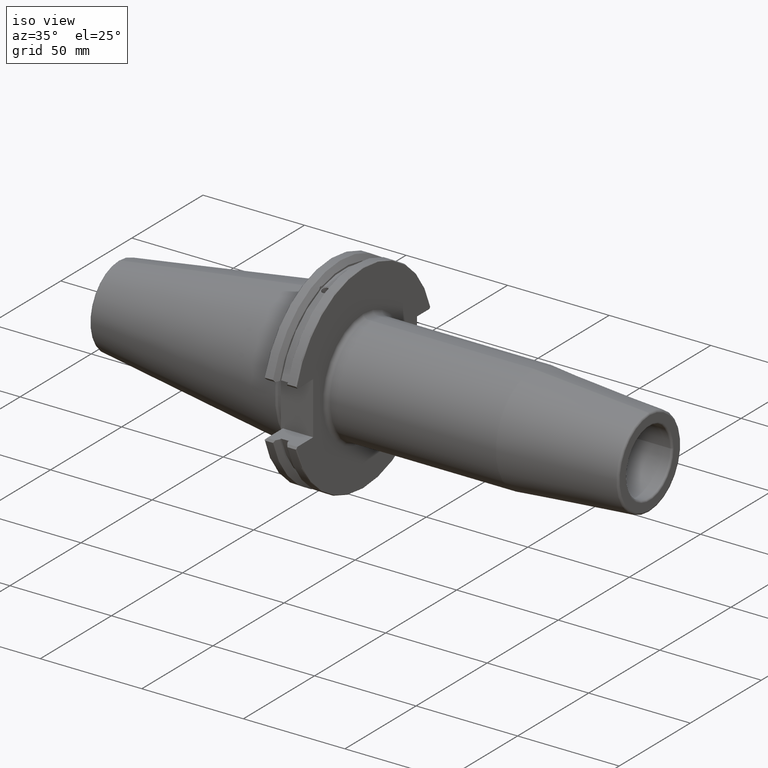
[diagram: clean part render]
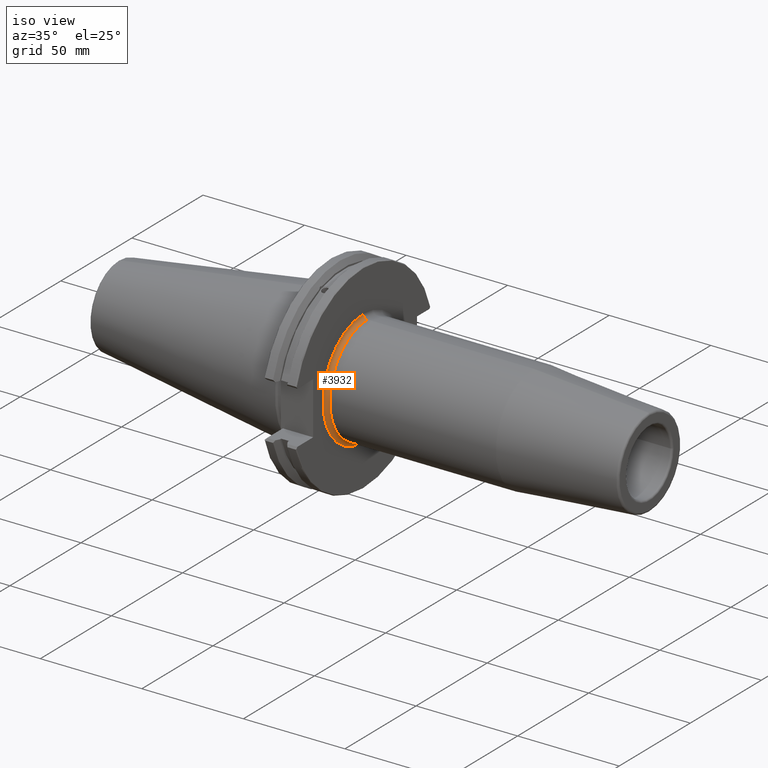
[diagram: same view with one face highlighted and labeled with its STEP entity id]
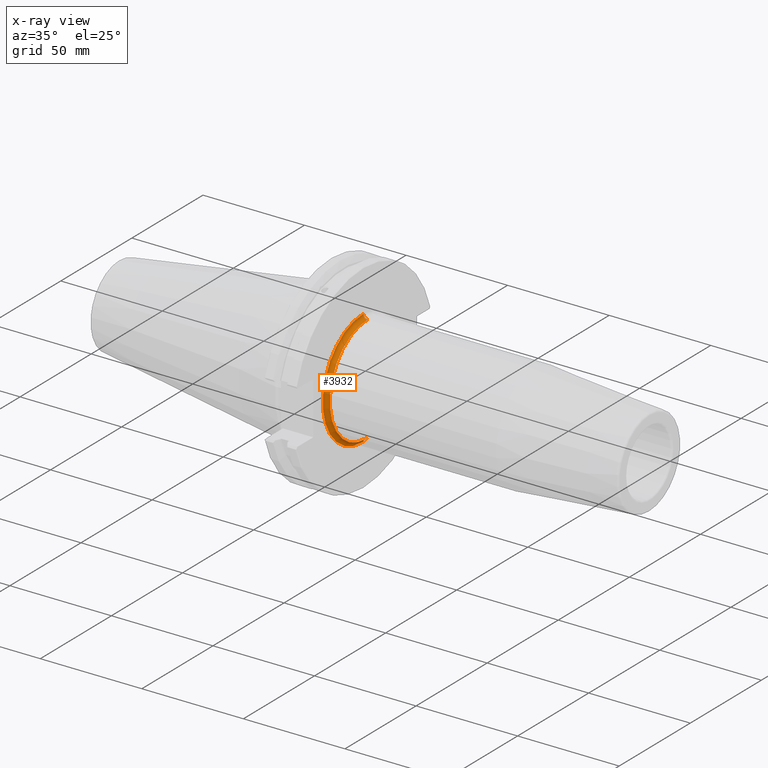
[diagram: x-ray of the same camera — body ghosted, the highlighted face saturated]
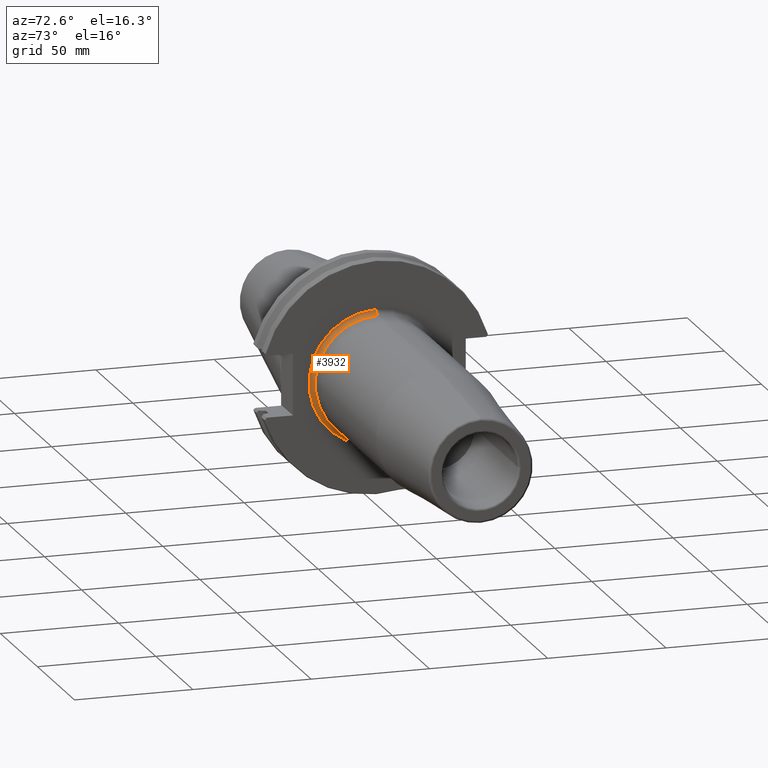
[diagram: same view with one face highlighted and labeled with its STEP entity id]
A machine part, iso view. The second image highlights one B-rep face of the part: STEP entity #3932.
The next image is the same camera in x-ray: the body ghosted, the highlighted face saturated — about 0% of this face is hidden behind the body in this view.
A second angle (auxiliary view) of the same face is appended — the face is thin or edge-on in the first view.
In plain terms, the highlighted toroidal blend (fillet) surface has major radius 28.5 mm and minor (blend) radius 2 mm.
Its self-contained STEP definition (entity closure, byte-faithful):
#407=CARTESIAN_POINT('',(1.905E1,0.E0,-1.599114874461E-14));
#408=DIRECTION('',(1.E0,0.E0,0.E0));
#409=DIRECTION('',(0.E0,0.E0,1.E0));
#410=AXIS2_PLACEMENT_3D('',#407,#408,#409);
#1657=CARTESIAN_POINT('',(2.105E1,0.E0,-1.576424347687E-14));
#1658=DIRECTION('',(1.E0,0.E0,0.E0));
#1659=DIRECTION('',(0.E0,0.E0,1.E0));
#1660=AXIS2_PLACEMENT_3D('',#1657,#1658,#1659);
#1667=CARTESIAN_POINT('',(2.105E1,2.983072899809E-9,2.85E1));
#1668=DIRECTION('',(0.E0,-1.E0,1.046692281459E-10));
#1669=DIRECTION('',(-1.E0,0.E0,-7.893419251559E-11));
#1670=AXIS2_PLACEMENT_3D('',#1667,#1668,#1669);
#1672=CARTESIAN_POINT('',(2.105E1,-2.983077895813E-9,-2.85E1));
#1673=DIRECTION('',(0.E0,1.E0,-1.046694016182E-10));
#1674=DIRECTION('',(-1.E0,0.E0,7.893063980191E-11));
#1675=AXIS2_PLACEMENT_3D('',#1672,#1673,#1674);
#2044=CARTESIAN_POINT('',(1.905E1,0.E0,2.85E1));
#2045=CARTESIAN_POINT('',(1.905E1,0.E0,-2.85E1));
#2046=VERTEX_POINT('',#2044);
#2047=VERTEX_POINT('',#2045);
#2048=CARTESIAN_POINT('',(2.105E1,0.E0,2.65E1));
#2049=CARTESIAN_POINT('',(2.105E1,0.E0,-2.65E1));
#2050=VERTEX_POINT('',#2048);
#2051=VERTEX_POINT('',#2049);
#3919=CARTESIAN_POINT('',(2.105E1,0.E0,-1.576424347687E-14));
#3920=DIRECTION('',(-1.E0,0.E0,0.E0));
#3921=DIRECTION('',(0.E0,2.437327823933E-2,9.997029275279E-1));
#3922=AXIS2_PLACEMENT_3D('',#3919,#3920,#3921);
#3923=TOROIDAL_SURFACE('',#3922,2.85E1,2.E0);
#3924=ORIENTED_EDGE('',*,*,#2614,.F.);
#3926=ORIENTED_EDGE('',*,*,#3925,.T.);
#3927=ORIENTED_EDGE('',*,*,#3909,.T.);
#3929=ORIENTED_EDGE('',*,*,#3928,.F.);
#3930=EDGE_LOOP('',(#3924,#3926,#3927,#3929));
#3931=FACE_OUTER_BOUND('',#3930,.F.);
#3932=ADVANCED_FACE('',(#3931),#3923,.F.);
#411=CIRCLE('',#410,2.85E1);
#1661=CIRCLE('',#1660,2.65E1);
#1671=CIRCLE('',#1670,2.E0);
#1676=CIRCLE('',#1675,2.E0);
#2614=EDGE_CURVE('',#2046,#2047,#411,.T.);
#3909=EDGE_CURVE('',#2050,#2051,#1661,.T.);
#3925=EDGE_CURVE('',#2046,#2050,#1671,.T.);
#3928=EDGE_CURVE('',#2047,#2051,#1676,.T.);